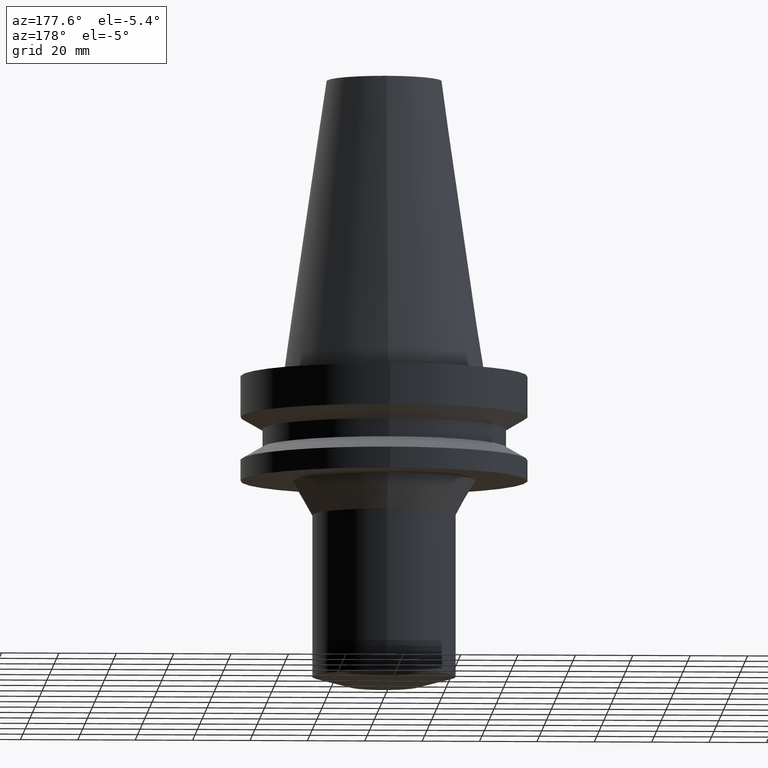
[diagram: clean part render]
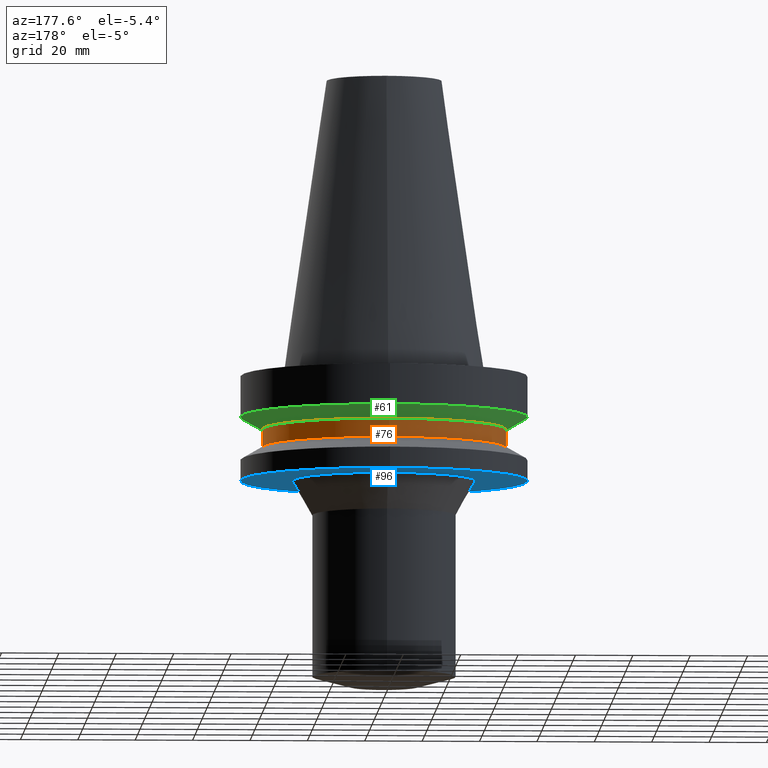
[diagram: same view with three faces highlighted in distinct colors, each labeled with its STEP entity id]
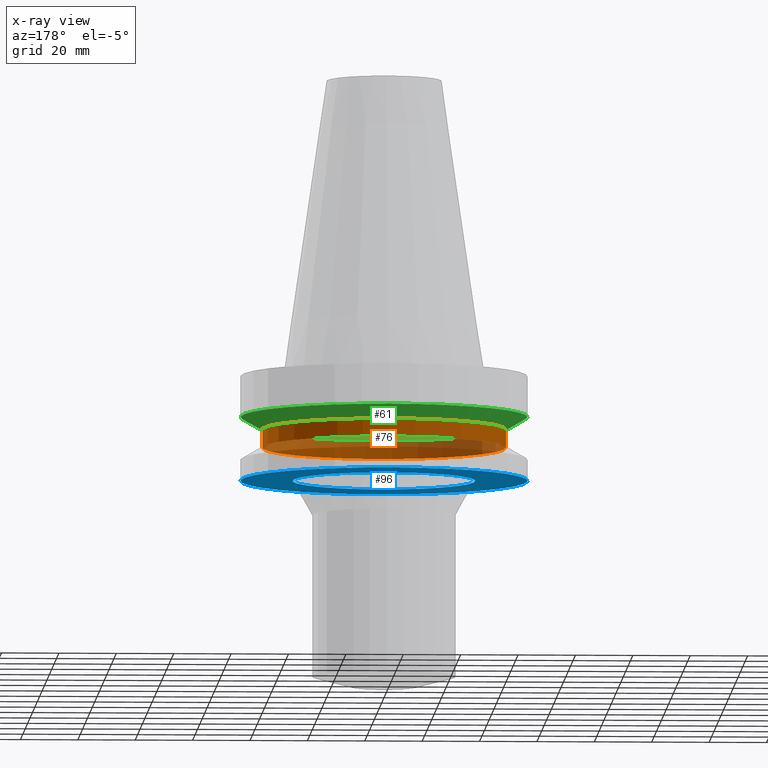
[diagram: x-ray of the same camera — body ghosted, the three highlighted faces saturated]
A machine part, auxiliary view with three faces highlighted in distinct colors.
The next image is the same camera in x-ray (body ghosted, the three faces saturated) — at least one of them is partly hidden behind the body in this view.
Their STEP definitions:

[orange] entity #76 — the highlighted cylindrical surface (bore or boss wall) has radius 42.5 mm, axis along (0, 0, -1).
#52=EDGE_CURVE('Unnamed[1]',#139,#139,#140,.T.);
#73=EDGE_CURVE('Unnamed[1]',#172,#172,#173,.T.);
#76=ADVANCED_FACE('Unnamed[1]',(#176,#177),#178,.T.);
#139=VERTEX_POINT('',#256);
#140=CIRCLE('',#257,42.5);
#172=VERTEX_POINT('',#297);
#173=CIRCLE('',#298,42.5);
#176=FACE_BOUND('',#302,.T.);
#177=FACE_BOUND('',#303,.T.);
#178=CYLINDRICAL_SURFACE('',#304,42.5);
#256=CARTESIAN_POINT('',(1.61468902694396E-015,42.5,-26.36987298));
#257=AXIS2_PLACEMENT_3D('',#392,#393,#394);
#297=CARTESIAN_POINT('',(1.2264915470779E-015,42.5,-20.03012702));
#298=AXIS2_PLACEMENT_3D('',#430,#431,#432);
#302=EDGE_LOOP('',(#434));
#303=EDGE_LOOP('',(#435));
#304=AXIS2_PLACEMENT_3D('',#436,#437,#438);
#392=CARTESIAN_POINT('',(1.61468902694396E-015,3.88836350876098E-015,-26.36987298));
#393=DIRECTION('',(6.12323399573677E-017,1.27566376151415E-016,-1.0));
#394=DIRECTION('',(-1.2638340442409E-032,1.0,1.27566376151415E-016));
#430=CARTESIAN_POINT('',(1.2264915470779E-015,3.07962509092328E-015,-20.03012702));
#431=DIRECTION('',(6.12323399573677E-017,1.27566376151415E-016,-1.0));
#432=DIRECTION('',(-1.2638340442409E-032,1.0,1.27566376151415E-016));
#434=ORIENTED_EDGE('',*,*,#52,.F.);
#435=ORIENTED_EDGE('',*,*,#73,.T.);
#436=CARTESIAN_POINT('',(1.42059028701093E-015,3.48399429984213E-015,-23.2));
#437=DIRECTION('',(6.12323399573677E-017,1.27566376151415E-016,-1.0));
#438=DIRECTION('',(-1.2638340442409E-032,1.0,1.27566376151415E-016));

[blue] entity #96 — the highlighted planar face has unit normal (0, 0, -1).
#80=EDGE_CURVE('Unnamed[1]',#183,#183,#184,.T.);
#96=ADVANCED_FACE('Unnamed[1]',(#208,#209),#210,.T.);
#111=EDGE_CURVE('Unnamed[1]',#232,#232,#233,.T.);
#183=VERTEX_POINT('',#311);
#184=CIRCLE('',#312,31.9282032302842);
#208=FACE_BOUND('',#342,.T.);
#209=FACE_OUTER_BOUND('',#343,.T.);
#210=PLANE('',#344);
#232=VERTEX_POINT('',#372);
#233=CIRCLE('',#373,50.0);
#311=CARTESIAN_POINT('',(2.32682891837997E-015,31.9282032302842,-38.0));
#312=AXIS2_PLACEMENT_3D('',#442,#443,#444);
#342=EDGE_LOOP('',(#470));
#343=EDGE_LOOP('',(#471));
#344=AXIS2_PLACEMENT_3D('',#472,#473,#474);
#372=CARTESIAN_POINT('',(2.32682891837997E-015,50.0,-38.0));
#373=AXIS2_PLACEMENT_3D('',#498,#499,#500);
#442=CARTESIAN_POINT('',(2.32682891837997E-015,5.37197666688292E-015,-38.0));
#443=DIRECTION('',(6.12323399573677E-017,1.27566376151435E-016,-1.0));
#444=DIRECTION('',(-1.26383404423945E-032,1.0,1.27566376151435E-016));
#470=ORIENTED_EDGE('',*,*,#80,.F.);
#471=ORIENTED_EDGE('',*,*,#111,.T.);
#472=CARTESIAN_POINT('',(2.32682891837997E-015,40.9641016151421,-38.0));
#473=DIRECTION('',(6.12323399573677E-017,1.22464679914735E-016,-1.0));
#474=DIRECTION('',(-1.23259516440783E-032,1.0,1.22464679914735E-016));
#498=CARTESIAN_POINT('',(2.32682891837997E-015,5.37197666688292E-015,-38.0));
#499=DIRECTION('',(6.12323399573677E-017,1.2756637615137E-016,-1.0));
#500=DIRECTION('',(-1.26383404424069E-032,1.0,1.2756637615137E-016));

[green] entity #61 — the highlighted conical surface has half-angle 60 deg.
#61=ADVANCED_FACE('Unnamed[1]',(#153,#154),#155,.T.);
#73=EDGE_CURVE('Unnamed[1]',#172,#172,#173,.T.);
#78=EDGE_CURVE('Unnamed[1]',#180,#180,#181,.T.);
#153=FACE_BOUND('',#273,.T.);
#154=FACE_BOUND('',#274,.T.);
#155=CONICAL_SURFACE('',#275,46.25,1.04719755108882);
#172=VERTEX_POINT('',#297);
#173=CIRCLE('',#298,42.5);
#180=VERTEX_POINT('',#307);
#181=CIRCLE('',#308,50.0);
#273=EDGE_LOOP('',(#408));
#274=EDGE_LOOP('',(#409));
#275=AXIS2_PLACEMENT_3D('',#410,#411,#412);
#297=CARTESIAN_POINT('',(1.2264915470779E-015,42.5,-20.03012702));
#298=AXIS2_PLACEMENT_3D('',#430,#431,#432);
#307=CARTESIAN_POINT('',(9.61347737330674E-016,50.0,-15.7));
#308=AXIS2_PLACEMENT_3D('',#439,#440,#441);
#408=ORIENTED_EDGE('',*,*,#73,.F.);
#409=ORIENTED_EDGE('',*,*,#78,.T.);
#410=CARTESIAN_POINT('',(1.09391964220429E-015,2.80343578481495E-015,-17.86506351));
#411=DIRECTION('',(-6.12323399573676E-017,-1.27566376151391E-016,1.0));
#412=DIRECTION('',(-1.26383404424039E-032,1.0,1.27566376151391E-016));
#430=CARTESIAN_POINT('',(1.2264915470779E-015,3.07962509092328E-015,-20.03012702));
#431=DIRECTION('',(6.12323399573677E-017,1.27566376151415E-016,-1.0));
#432=DIRECTION('',(-1.2638340442409E-032,1.0,1.27566376151415E-016));
#439=CARTESIAN_POINT('',(9.61347737330675E-016,2.52724647870661E-015,-15.7));
#440=DIRECTION('',(6.12323399573677E-017,1.2756637615137E-016,-1.0));
#441=DIRECTION('',(-1.26383404424069E-032,1.0,1.2756637615137E-016));